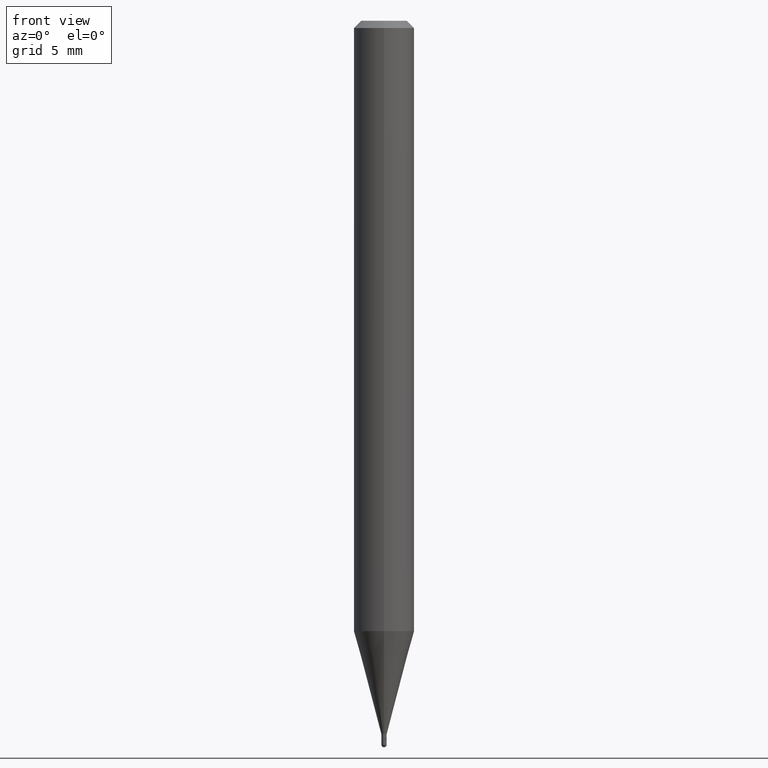
[diagram: clean part render]
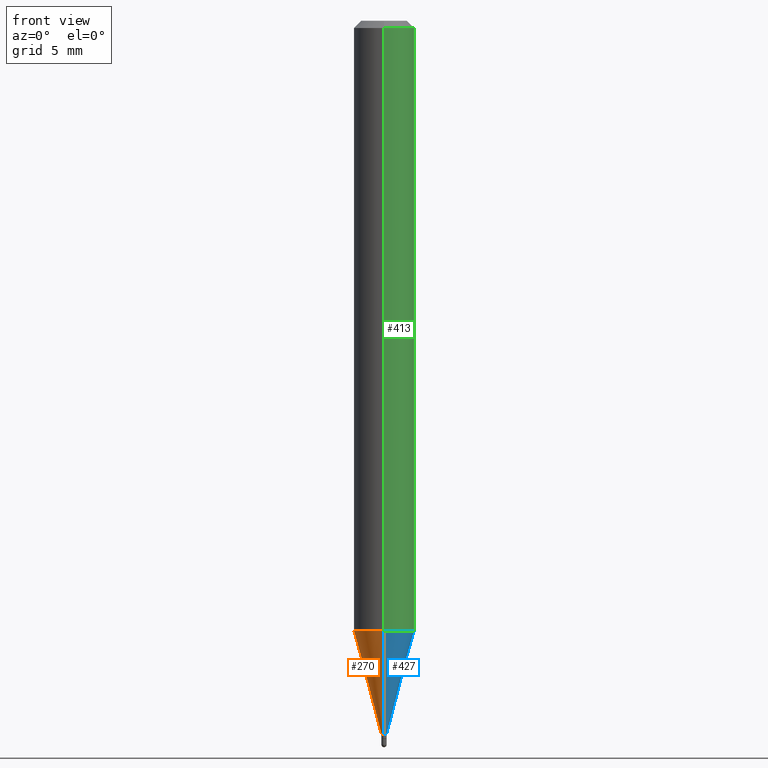
[diagram: same view with three faces highlighted in distinct colors, each labeled with its STEP entity id]
A machine part, front view with three faces highlighted in distinct colors.
Their STEP definitions:

[orange] entity #270 — the highlighted conical surface has half-angle 15 deg.
#5 = ORIENTED_EDGE ( 'NONE', *, *, #408, .T. ) ;
#16 = CARTESIAN_POINT ( 'NONE',  ( 3.602159535091854458E-29, -5.142974948539348229E-15, -1.473000000000000087 ) ) ;
#25 = CARTESIAN_POINT ( 'NONE',  ( -3.840629472723789408E-17, -0.005500000000005065073, -1.473000000000000087 ) ) ;
#35 = CARTESIAN_POINT ( 'NONE',  ( -4.364351673553608052E-16, -0.06250000000000439926, -1.260273103968574615 ) ) ;
#37 = DIRECTION ( 'NONE',  ( -2.445457932852582401E-29, 3.491496910074235164E-15, 1.000000000000000000 ) ) ;
#50 = CONICAL_SURFACE ( 'NONE', #279, 0.005499999999999922486, 0.2617993877991506291 ) ;
#60 = VERTEX_POINT ( 'NONE', #25 ) ;
#69 = CARTESIAN_POINT ( 'NONE',  ( 3.602159535091854458E-29, -5.142974948539348229E-15, -1.473000000000000087 ) ) ;
#75 = DIRECTION ( 'NONE',  ( -1.807323732225332900E-15, -0.2588190451025185190, 0.9659258262890689783 ) ) ;
#97 = AXIS2_PLACEMENT_3D ( 'NONE', #16, #327, #167 ) ;
#104 = ORIENTED_EDGE ( 'NONE', *, *, #136, .T. ) ;
#105 = CARTESIAN_POINT ( 'NONE',  ( 3.081944859660698736E-29, -4.400239648355943616E-15, -1.260273103968574837 ) ) ;
#110 = DIRECTION ( 'NONE',  ( -2.445457932852582401E-29, 3.491496910074235164E-15, 1.000000000000000000 ) ) ;
#113 = VECTOR ( 'NONE', #75, 39.37007874015748854 ) ;
#118 = CIRCLE ( 'NONE', #97, 0.005499999999999922486 ) ;
#136 = EDGE_CURVE ( 'NONE', #60, #276, #267, .T. ) ;
#157 = VERTEX_POINT ( 'NONE', #469 ) ;
#158 = ORIENTED_EDGE ( 'NONE', *, *, #501, .F. ) ;
#167 = DIRECTION ( 'NONE',  ( -6.982962677686265922E-15, -1.000000000000000000, 0.000000000000000000 ) ) ;
#173 = EDGE_CURVE ( 'NONE', #157, #276, #473, .T. ) ;
#209 = ORIENTED_EDGE ( 'NONE', *, *, #173, .F. ) ;
#218 = CARTESIAN_POINT ( 'NONE',  ( 2.415845301584673606E-16, 0.005499999999994779898, -1.473000000000000087 ) ) ;
#233 = DIRECTION ( 'NONE',  ( -6.982962677686265922E-15, -1.000000000000000000, 4.370956789862821150E-15 ) ) ;
#246 = AXIS2_PLACEMENT_3D ( 'NONE', #105, #110, #233 ) ;
#266 = CARTESIAN_POINT ( 'NONE',  ( -3.840629472723789408E-17, -0.005500000000005065073, -1.473000000000000087 ) ) ;
#267 = LINE ( 'NONE', #266, #113 ) ;
#270 = ADVANCED_FACE ( 'NONE', ( #352 ), #50, .T. ) ;
#276 = VERTEX_POINT ( 'NONE', #35 ) ;
#279 = AXIS2_PLACEMENT_3D ( 'NONE', #69, #37, #354 ) ;
#302 = CARTESIAN_POINT ( 'NONE',  ( 3.907985046684097588E-17, 0.005499999999994779898, -1.473000000000000087 ) ) ;
#315 = VECTOR ( 'NONE', #426, 39.37007874015748143 ) ;
#327 = DIRECTION ( 'NONE',  ( -2.445457932852582401E-29, 3.491496910074235164E-15, 1.000000000000000000 ) ) ;
#340 = LINE ( 'NONE', #302, #315 ) ;
#352 = FACE_OUTER_BOUND ( 'NONE', #377, .T. ) ;
#354 = DIRECTION ( 'NONE',  ( -6.982962677686265922E-15, -1.000000000000000000, 0.000000000000000000 ) ) ;
#377 = EDGE_LOOP ( 'NONE', ( #158, #5, #104, #209 ) ) ;
#408 = EDGE_CURVE ( 'NONE', #477, #60, #118, .T. ) ;
#426 = DIRECTION ( 'NONE',  ( 1.839019923739602682E-15, 0.2588190451025252914, 0.9659258262890670910 ) ) ;
#469 = CARTESIAN_POINT ( 'NONE',  ( 4.440892098500932831E-16, 0.06249999999999559380, -1.260273103968575059 ) ) ;
#473 = CIRCLE ( 'NONE', #246, 0.06250000000000000000 ) ;
#477 = VERTEX_POINT ( 'NONE', #218 ) ;
#501 = EDGE_CURVE ( 'NONE', #477, #157, #340, .T. ) ;

[blue] entity #427 — the highlighted conical surface has half-angle 15 deg.
#9 = CIRCLE ( 'NONE', #176, 0.005499999999999922486 ) ;
#14 = CARTESIAN_POINT ( 'NONE',  ( 3.602159535091854458E-29, -5.142974948539348229E-15, -1.473000000000000087 ) ) ;
#25 = CARTESIAN_POINT ( 'NONE',  ( -3.840629472723789408E-17, -0.005500000000005065073, -1.473000000000000087 ) ) ;
#35 = CARTESIAN_POINT ( 'NONE',  ( -4.364351673553608052E-16, -0.06250000000000439926, -1.260273103968574615 ) ) ;
#60 = VERTEX_POINT ( 'NONE', #25 ) ;
#63 = ORIENTED_EDGE ( 'NONE', *, *, #501, .T. ) ;
#75 = DIRECTION ( 'NONE',  ( -1.807323732225332900E-15, -0.2588190451025185190, 0.9659258262890689783 ) ) ;
#84 = ORIENTED_EDGE ( 'NONE', *, *, #136, .F. ) ;
#93 = DIRECTION ( 'NONE',  ( -2.445457932852582401E-29, 3.491496910074235164E-15, 1.000000000000000000 ) ) ;
#94 = ORIENTED_EDGE ( 'NONE', *, *, #120, .T. ) ;
#113 = VECTOR ( 'NONE', #75, 39.37007874015748854 ) ;
#120 = EDGE_CURVE ( 'NONE', #60, #477, #9, .T. ) ;
#126 = EDGE_LOOP ( 'NONE', ( #94, #63, #421, #84 ) ) ;
#129 = CONICAL_SURFACE ( 'NONE', #403, 0.005499999999999922486, 0.2617993877991506291 ) ;
#136 = EDGE_CURVE ( 'NONE', #60, #276, #267, .T. ) ;
#157 = VERTEX_POINT ( 'NONE', #469 ) ;
#176 = AXIS2_PLACEMENT_3D ( 'NONE', #222, #348, #474 ) ;
#186 = AXIS2_PLACEMENT_3D ( 'NONE', #386, #227, #220 ) ;
#218 = CARTESIAN_POINT ( 'NONE',  ( 2.415845301584673606E-16, 0.005499999999994779898, -1.473000000000000087 ) ) ;
#220 = DIRECTION ( 'NONE',  ( -6.982962677686265922E-15, -1.000000000000000000, 4.370956789862821150E-15 ) ) ;
#222 = CARTESIAN_POINT ( 'NONE',  ( 3.602159535091854458E-29, -5.142974948539348229E-15, -1.473000000000000087 ) ) ;
#227 = DIRECTION ( 'NONE',  ( -2.445457932852582401E-29, 3.491496910074235164E-15, 1.000000000000000000 ) ) ;
#244 = FACE_OUTER_BOUND ( 'NONE', #126, .T. ) ;
#266 = CARTESIAN_POINT ( 'NONE',  ( -3.840629472723789408E-17, -0.005500000000005065073, -1.473000000000000087 ) ) ;
#267 = LINE ( 'NONE', #266, #113 ) ;
#276 = VERTEX_POINT ( 'NONE', #35 ) ;
#302 = CARTESIAN_POINT ( 'NONE',  ( 3.907985046684097588E-17, 0.005499999999994779898, -1.473000000000000087 ) ) ;
#315 = VECTOR ( 'NONE', #426, 39.37007874015748143 ) ;
#340 = LINE ( 'NONE', #302, #315 ) ;
#348 = DIRECTION ( 'NONE',  ( -2.445457932852582401E-29, 3.491496910074235164E-15, 1.000000000000000000 ) ) ;
#363 = DIRECTION ( 'NONE',  ( -6.982962677686265922E-15, -1.000000000000000000, 0.000000000000000000 ) ) ;
#386 = CARTESIAN_POINT ( 'NONE',  ( 3.081944859660698736E-29, -4.400239648355943616E-15, -1.260273103968574837 ) ) ;
#403 = AXIS2_PLACEMENT_3D ( 'NONE', #14, #93, #363 ) ;
#415 = CIRCLE ( 'NONE', #186, 0.06250000000000000000 ) ;
#421 = ORIENTED_EDGE ( 'NONE', *, *, #486, .F. ) ;
#426 = DIRECTION ( 'NONE',  ( 1.839019923739602682E-15, 0.2588190451025252914, 0.9659258262890670910 ) ) ;
#427 = ADVANCED_FACE ( 'NONE', ( #244 ), #129, .T. ) ;
#469 = CARTESIAN_POINT ( 'NONE',  ( 4.440892098500932831E-16, 0.06249999999999559380, -1.260273103968575059 ) ) ;
#474 = DIRECTION ( 'NONE',  ( -6.982962677686265922E-15, -1.000000000000000000, 0.000000000000000000 ) ) ;
#477 = VERTEX_POINT ( 'NONE', #218 ) ;
#486 = EDGE_CURVE ( 'NONE', #276, #157, #415, .T. ) ;
#501 = EDGE_CURVE ( 'NONE', #477, #157, #340, .T. ) ;

[green] entity #413 — the highlighted cylindrical surface (edge-blend (fillet) strip) has radius 1.5875 mm, axis along (-0, 0, 1).
#3 = AXIS2_PLACEMENT_3D ( 'NONE', #491, #133, #374 ) ;
#19 = DIRECTION ( 'NONE',  ( -2.445457932852582401E-29, 3.491496910074235164E-15, 1.000000000000000000 ) ) ;
#21 = EDGE_CURVE ( 'NONE', #276, #475, #496, .T. ) ;
#35 = CARTESIAN_POINT ( 'NONE',  ( -4.364351673553608052E-16, -0.06250000000000439926, -1.260273103968574615 ) ) ;
#46 = DIRECTION ( 'NONE',  ( -2.445457932852582401E-29, 3.491496910074235164E-15, 1.000000000000000000 ) ) ;
#59 = VECTOR ( 'NONE', #46, 39.37007874015748143 ) ;
#80 = AXIS2_PLACEMENT_3D ( 'NONE', #338, #252, #125 ) ;
#89 = VECTOR ( 'NONE', #19, 39.37007874015748143 ) ;
#125 = DIRECTION ( 'NONE',  ( -6.982962677686265922E-15, -1.000000000000000000, 3.483106191921935554E-15 ) ) ;
#133 = DIRECTION ( 'NONE',  ( -2.445457932852582401E-29, 3.491496910074235164E-15, 1.000000000000000000 ) ) ;
#143 = CARTESIAN_POINT ( 'NONE',  ( 4.440892098500935790E-16, 0.06249999999999995143, -0.01499999999999997863 ) ) ;
#149 = CARTESIAN_POINT ( 'NONE',  ( -4.364351673553912750E-16, -0.06250000000000005551, -0.01499999999999954321 ) ) ;
#157 = VERTEX_POINT ( 'NONE', #469 ) ;
#186 = AXIS2_PLACEMENT_3D ( 'NONE', #386, #227, #220 ) ;
#200 = CYLINDRICAL_SURFACE ( 'NONE', #3, 0.06250000000000000000 ) ;
#211 = CARTESIAN_POINT ( 'NONE',  ( -4.364351673553916201E-16, -0.06250000000000000000, 2.182185568796396731E-16 ) ) ;
#220 = DIRECTION ( 'NONE',  ( -6.982962677686265922E-15, -1.000000000000000000, 4.370956789862821150E-15 ) ) ;
#227 = DIRECTION ( 'NONE',  ( -2.445457932852582401E-29, 3.491496910074235164E-15, 1.000000000000000000 ) ) ;
#235 = ORIENTED_EDGE ( 'NONE', *, *, #21, .F. ) ;
#241 = CARTESIAN_POINT ( 'NONE',  ( 4.440892098500625669E-16, 0.06250000000000000000, -2.182185568796396731E-16 ) ) ;
#252 = DIRECTION ( 'NONE',  ( -2.445457932852582401E-29, 3.491496910074235164E-15, 1.000000000000000000 ) ) ;
#276 = VERTEX_POINT ( 'NONE', #35 ) ;
#294 = LINE ( 'NONE', #241, #59 ) ;
#323 = EDGE_CURVE ( 'NONE', #475, #479, #357, .T. ) ;
#335 = FACE_OUTER_BOUND ( 'NONE', #489, .T. ) ;
#338 = CARTESIAN_POINT ( 'NONE',  ( 3.668186899278815115E-31, -5.237245365111268929E-17, -0.01499999999999976179 ) ) ;
#357 = CIRCLE ( 'NONE', #80, 0.06250000000000000000 ) ;
#369 = ORIENTED_EDGE ( 'NONE', *, *, #409, .T. ) ;
#374 = DIRECTION ( 'NONE',  ( -6.982962677686265922E-15, -1.000000000000000000, 3.491496910074234769E-15 ) ) ;
#386 = CARTESIAN_POINT ( 'NONE',  ( 3.081944859660698736E-29, -4.400239648355943616E-15, -1.260273103968574837 ) ) ;
#409 = EDGE_CURVE ( 'NONE', #157, #479, #294, .T. ) ;
#413 = ADVANCED_FACE ( 'NONE', ( #335 ), #200, .T. ) ;
#415 = CIRCLE ( 'NONE', #186, 0.06250000000000000000 ) ;
#438 = ORIENTED_EDGE ( 'NONE', *, *, #486, .T. ) ;
#469 = CARTESIAN_POINT ( 'NONE',  ( 4.440892098500932831E-16, 0.06249999999999559380, -1.260273103968575059 ) ) ;
#475 = VERTEX_POINT ( 'NONE', #149 ) ;
#479 = VERTEX_POINT ( 'NONE', #143 ) ;
#485 = ORIENTED_EDGE ( 'NONE', *, *, #323, .F. ) ;
#486 = EDGE_CURVE ( 'NONE', #276, #157, #415, .T. ) ;
#489 = EDGE_LOOP ( 'NONE', ( #438, #369, #485, #235 ) ) ;
#491 = CARTESIAN_POINT ( 'NONE',  ( 0.000000000000000000, 0.000000000000000000, 0.000000000000000000 ) ) ;
#496 = LINE ( 'NONE', #211, #89 ) ;